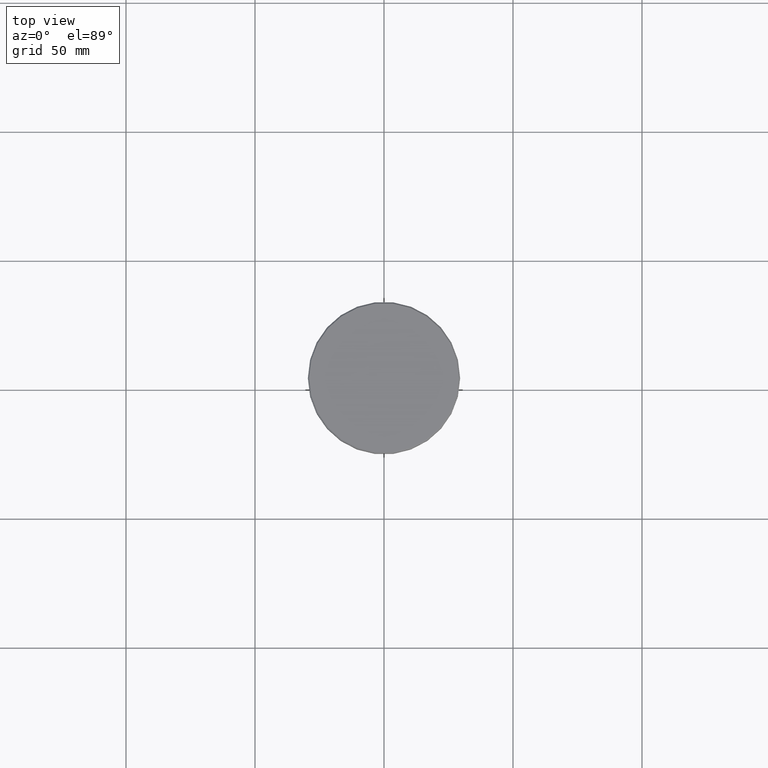
[diagram: clean part render]
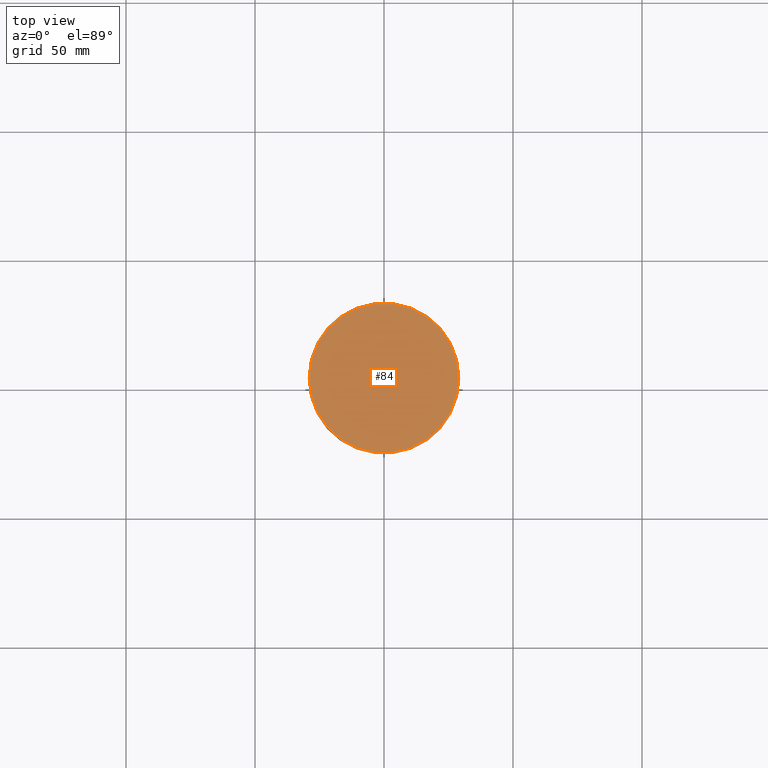
[diagram: same view with one face highlighted and labeled with its STEP entity id]
A machine part, top view. The second image highlights one B-rep face of the part: STEP entity #84.
In plain terms, the highlighted planar face has unit normal (0, -0, 1).
Its self-contained STEP definition (entity closure, byte-faithful):
#23 = CARTESIAN_POINT ( 'NONE',  ( 0.000000000000000000, 0.000000000000000000, 0.000000000000000000 ) ) ;
#39 = CARTESIAN_POINT ( 'NONE',  ( 28.99999999999997158, 3.582091887506006239E-15, 0.000000000000000000 ) ) ;
#84 = ADVANCED_FACE ( 'NONE', ( #910 ), #93, .T. ) ;
#93 = PLANE ( 'NONE',  #1071 ) ;
#140 = CARTESIAN_POINT ( 'NONE',  ( 0.000000000000000000, 0.000000000000000000, 0.000000000000000000 ) ) ;
#149 = EDGE_CURVE ( 'NONE', #1005, #658, #626, .T. ) ;
#164 = ORIENTED_EDGE ( 'NONE', *, *, #256, .T. ) ;
#256 = EDGE_CURVE ( 'NONE', #658, #1005, #609, .T. ) ;
#280 = DIRECTION ( 'NONE',  ( 0.000000000000000000, -0.000000000000000000, 1.000000000000000000 ) ) ;
#337 = CARTESIAN_POINT ( 'NONE',  ( -28.99999999999997158, 0.000000000000000000, 0.000000000000000000 ) ) ;
#375 = ORIENTED_EDGE ( 'NONE', *, *, #149, .T. ) ;
#392 = DIRECTION ( 'NONE',  ( -0.000000000000000000, -0.000000000000000000, 1.000000000000000000 ) ) ;
#407 = AXIS2_PLACEMENT_3D ( 'NONE', #140, #786, #947 ) ;
#609 = CIRCLE ( 'NONE', #650, 28.99999999999997158 ) ;
#626 = CIRCLE ( 'NONE', #407, 28.99999999999997158 ) ;
#650 = AXIS2_PLACEMENT_3D ( 'NONE', #23, #392, #661 ) ;
#651 = DIRECTION ( 'NONE',  ( 1.000000000000000000, 0.000000000000000000, 0.000000000000000000 ) ) ;
#658 = VERTEX_POINT ( 'NONE', #39 ) ;
#661 = DIRECTION ( 'NONE',  ( 1.000000000000000000, 0.000000000000000000, 0.000000000000000000 ) ) ;
#786 = DIRECTION ( 'NONE',  ( -0.000000000000000000, -0.000000000000000000, 1.000000000000000000 ) ) ;
#829 = CARTESIAN_POINT ( 'NONE',  ( 0.000000000000000000, 0.000000000000000000, 0.000000000000000000 ) ) ;
#910 = FACE_OUTER_BOUND ( 'NONE', #1062, .T. ) ;
#947 = DIRECTION ( 'NONE',  ( 1.000000000000000000, 0.000000000000000000, 0.000000000000000000 ) ) ;
#1005 = VERTEX_POINT ( 'NONE', #337 ) ;
#1062 = EDGE_LOOP ( 'NONE', ( #375, #164 ) ) ;
#1071 = AXIS2_PLACEMENT_3D ( 'NONE', #829, #280, #651 ) ;